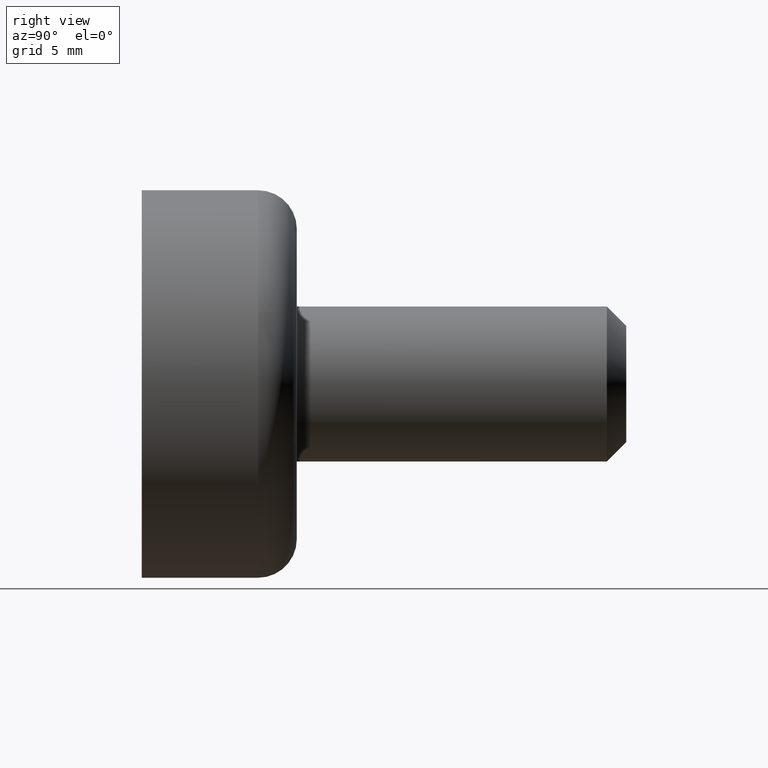
[diagram: clean part render]
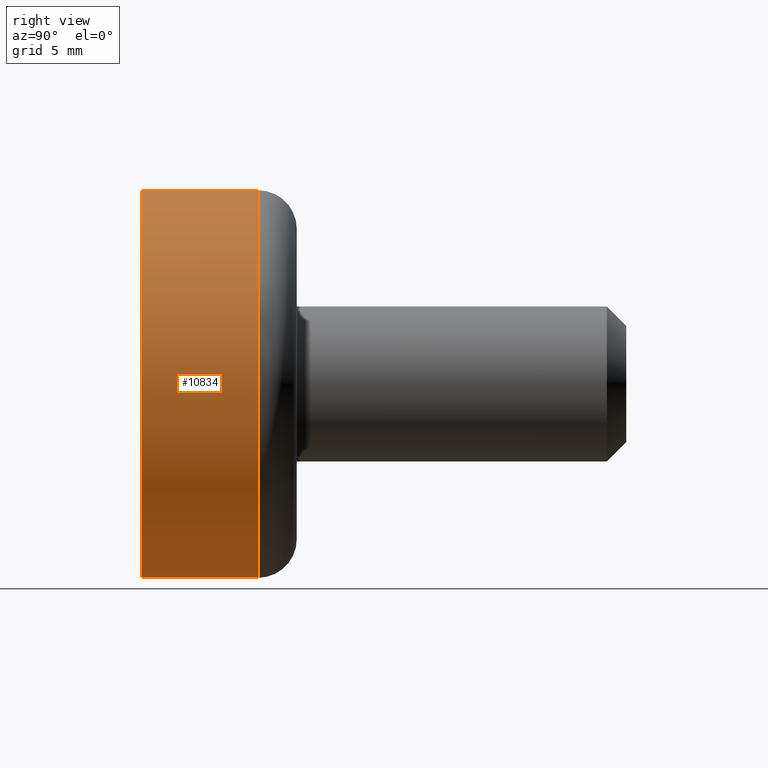
[diagram: same view with one face highlighted and labeled with its STEP entity id]
A machine part, right view. The second image highlights one B-rep face of the part: STEP entity #10834.
In plain terms, the highlighted cylindrical surface (partial cylindrical patch) has radius 10 mm, axis along (-0, -1, -0).
Its self-contained STEP definition (entity closure, byte-faithful):
#47 = VERTEX_POINT ( 'NONE', #13946 ) ;
#109 = EDGE_CURVE ( 'NONE', #5502, #370, #13764, .T. ) ;
#206 = CIRCLE ( 'NONE', #7383, 10.00000000000000000 ) ;
#370 = VERTEX_POINT ( 'NONE', #613 ) ;
#485 = LINE ( 'NONE', #13053, #8929 ) ;
#607 = ORIENTED_EDGE ( 'NONE', *, *, #109, .F. ) ;
#613 = CARTESIAN_POINT ( 'NONE',  ( 0.000000000000000000, -1.530808498934191521E-15, -10.00000000000000000 ) ) ;
#1536 = EDGE_LOOP ( 'NONE', ( #9741, #9176, #14275, #607 ) ) ;
#1715 = DIRECTION ( 'NONE',  ( 0.000000000000000000, 0.000000000000000000, 1.000000000000000000 ) ) ;
#2131 = DIRECTION ( 'NONE',  ( -0.000000000000000000, -1.000000000000000000, -0.000000000000000000 ) ) ;
#2272 = CARTESIAN_POINT ( 'NONE',  ( 0.000000000000000000, -1.530808498934191521E-15, 0.000000000000000000 ) ) ;
#2568 = EDGE_CURVE ( 'NONE', #370, #47, #206, .T. ) ;
#3245 = FACE_OUTER_BOUND ( 'NONE', #1536, .T. ) ;
#3736 = DIRECTION ( 'NONE',  ( 0.000000000000000000, 0.000000000000000000, -1.000000000000000000 ) ) ;
#4045 = CARTESIAN_POINT ( 'NONE',  ( 0.000000000000000000, 5.999999999999998224, -10.00000000000000000 ) ) ;
#4601 = EDGE_CURVE ( 'NONE', #5502, #10078, #13490, .T. ) ;
#4614 = DIRECTION ( 'NONE',  ( 0.000000000000000000, 0.000000000000000000, -1.000000000000000000 ) ) ;
#5502 = VERTEX_POINT ( 'NONE', #4045 ) ;
#5664 = DIRECTION ( 'NONE',  ( -0.000000000000000000, -1.000000000000000000, -0.000000000000000000 ) ) ;
#5832 = DIRECTION ( 'NONE',  ( -0.000000000000000000, -1.000000000000000000, -0.000000000000000000 ) ) ;
#6329 = DIRECTION ( 'NONE',  ( -0.000000000000000000, -1.000000000000000000, -0.000000000000000000 ) ) ;
#7383 = AXIS2_PLACEMENT_3D ( 'NONE', #2272, #10754, #4614 ) ;
#7744 = CYLINDRICAL_SURFACE ( 'NONE', #15409, 10.00000000000000000 ) ;
#7958 = AXIS2_PLACEMENT_3D ( 'NONE', #8882, #6329, #1715 ) ;
#8061 = EDGE_CURVE ( 'NONE', #10078, #47, #485, .T. ) ;
#8121 = CARTESIAN_POINT ( 'NONE',  ( 0.000000000000000000, 0.000000000000000000, -10.00000000000000000 ) ) ;
#8882 = CARTESIAN_POINT ( 'NONE',  ( 0.000000000000000000, 5.999999999999998224, 0.000000000000000000 ) ) ;
#8929 = VECTOR ( 'NONE', #2131, 1000.000000000000000 ) ;
#9176 = ORIENTED_EDGE ( 'NONE', *, *, #8061, .T. ) ;
#9741 = ORIENTED_EDGE ( 'NONE', *, *, #4601, .T. ) ;
#10078 = VERTEX_POINT ( 'NONE', #13295 ) ;
#10754 = DIRECTION ( 'NONE',  ( -0.000000000000000000, -1.000000000000000000, -0.000000000000000000 ) ) ;
#10834 = ADVANCED_FACE ( 'NONE', ( #3245 ), #7744, .T. ) ;
#10948 = VECTOR ( 'NONE', #5664, 1000.000000000000000 ) ;
#11819 = CARTESIAN_POINT ( 'NONE',  ( 0.000000000000000000, 0.000000000000000000, 0.000000000000000000 ) ) ;
#13053 = CARTESIAN_POINT ( 'NONE',  ( 1.224646799147353256E-15, 0.000000000000000000, 10.00000000000000000 ) ) ;
#13295 = CARTESIAN_POINT ( 'NONE',  ( 1.224646799147353256E-15, 5.999999999999998224, 10.00000000000000000 ) ) ;
#13490 = CIRCLE ( 'NONE', #7958, 10.00000000000000000 ) ;
#13764 = LINE ( 'NONE', #8121, #10948 ) ;
#13946 = CARTESIAN_POINT ( 'NONE',  ( 1.224646799147353256E-15, -1.530808498934191521E-15, 10.00000000000000000 ) ) ;
#14275 = ORIENTED_EDGE ( 'NONE', *, *, #2568, .F. ) ;
#15409 = AXIS2_PLACEMENT_3D ( 'NONE', #11819, #5832, #3736 ) ;